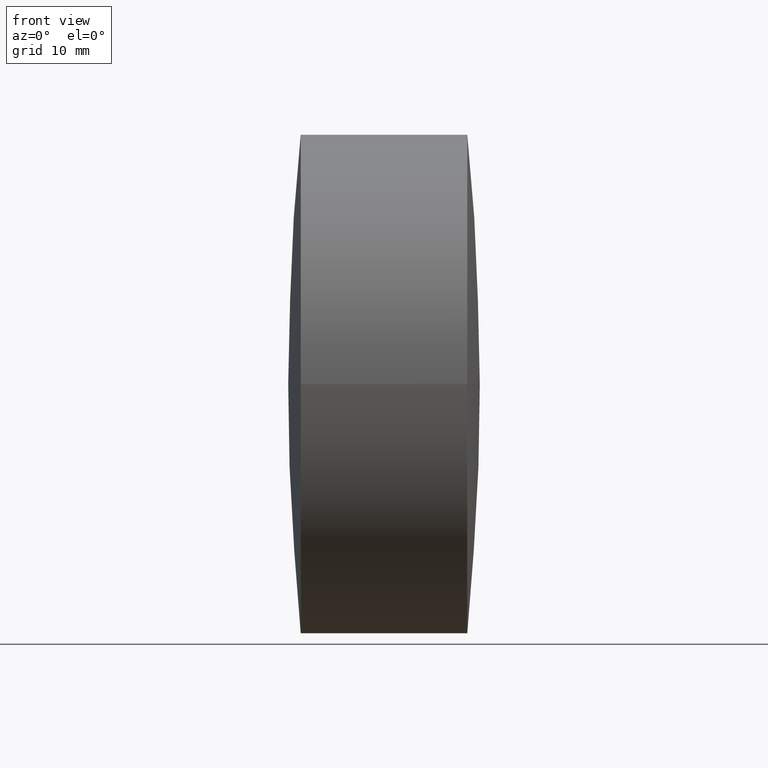
[diagram: clean part render]
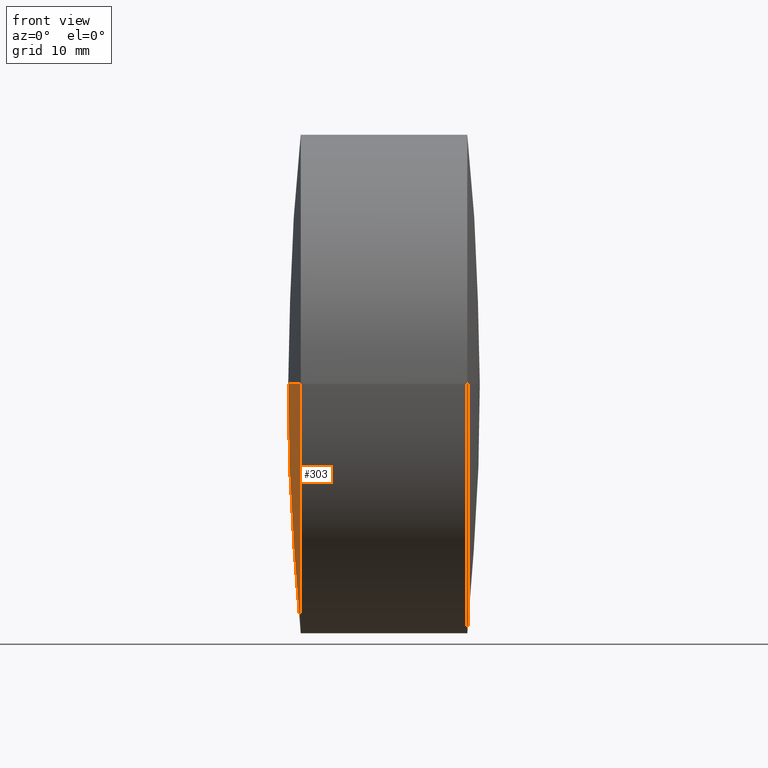
[diagram: same view with one face highlighted and labeled with its STEP entity id]
A machine part, front view. The second image highlights one B-rep face of the part: STEP entity #303.
In plain terms, the highlighted spherical surface has radius 350.755 mm.
Its self-contained STEP definition (entity closure, byte-faithful):
#2 = EDGE_CURVE ( 'NONE', #71, #199, #164, .T. ) ;
#7 = CARTESIAN_POINT ( 'NONE',  ( 226.6046127648167500, 98.98141384342911000, -4.286263797015637900E-015 ) ) ;
#29 = CIRCLE ( 'NONE', #299, 350.7553411287618100 ) ;
#43 = DIRECTION ( 'NONE',  ( 0.0000000000000000000, 0.0000000000000000000, 1.000000000000000000 ) ) ;
#44 = CARTESIAN_POINT ( 'NONE',  ( 226.6046127648173800, 133.9814138434227000, 0.0000000000000000000 ) ) ;
#50 = CARTESIAN_POINT ( 'NONE',  ( 575.6093538935799600, 133.9814138434221300, 0.0000000000000000000 ) ) ;
#55 = SPHERICAL_SURFACE ( 'NONE', #62, 350.7553411287618100 ) ;
#61 = VERTEX_POINT ( 'NONE', #66 ) ;
#62 = AXIS2_PLACEMENT_3D ( 'NONE', #50, #262, #179 ) ;
#66 = CARTESIAN_POINT ( 'NONE',  ( 224.8540127648180900, 133.9814138434283800, 0.0000000000000000000 ) ) ;
#70 = CIRCLE ( 'NONE', #288, 350.7553411287618100 ) ;
#71 = VERTEX_POINT ( 'NONE', #110 ) ;
#96 = DIRECTION ( 'NONE',  ( 0.0000000000000000000, 1.000000000000000000, 1.224646799147353200E-016 ) ) ;
#97 = DIRECTION ( 'NONE',  ( 2.170125038671178500E-030, 1.224646799147353200E-016, -1.000000000000000000 ) ) ;
#110 = CARTESIAN_POINT ( 'NONE',  ( 226.6046127648180300, 168.9814138434219000, 0.0000000000000000000 ) ) ;
#114 = ORIENTED_EDGE ( 'NONE', *, *, #2, .T. ) ;
#115 = DIRECTION ( 'NONE',  ( 1.000000000000000000, 0.0000000000000000000, 0.0000000000000000000 ) ) ;
#146 = EDGE_CURVE ( 'NONE', #71, #61, #29, .T. ) ;
#159 = CARTESIAN_POINT ( 'NONE',  ( 575.6093538935799600, 133.9814138434221300, 0.0000000000000000000 ) ) ;
#164 = CIRCLE ( 'NONE', #246, 34.99999999999989300 ) ;
#177 = DIRECTION ( 'NONE',  ( -1.000000000000000000, 1.772041571645068800E-014, -0.0000000000000000000 ) ) ;
#179 = DIRECTION ( 'NONE',  ( 1.772531508114236400E-014, 1.000000000000000000, 0.0000000000000000000 ) ) ;
#196 = ORIENTED_EDGE ( 'NONE', *, *, #243, .T. ) ;
#199 = VERTEX_POINT ( 'NONE', #7 ) ;
#218 = EDGE_LOOP ( 'NONE', ( #114, #196, #284 ) ) ;
#230 = CARTESIAN_POINT ( 'NONE',  ( 575.6093538935799600, 133.9814138434221300, 0.0000000000000000000 ) ) ;
#243 = EDGE_CURVE ( 'NONE', #199, #61, #70, .T. ) ;
#246 = AXIS2_PLACEMENT_3D ( 'NONE', #44, #177, #286 ) ;
#262 = DIRECTION ( 'NONE',  ( 0.0000000000000000000, 0.0000000000000000000, -1.000000000000000000 ) ) ;
#263 = FACE_OUTER_BOUND ( 'NONE', #218, .T. ) ;
#284 = ORIENTED_EDGE ( 'NONE', *, *, #146, .F. ) ;
#286 = DIRECTION ( 'NONE',  ( -1.744636181553822700E-014, -1.000000000000000000, 0.0000000000000000000 ) ) ;
#288 = AXIS2_PLACEMENT_3D ( 'NONE', #159, #97, #96 ) ;
#299 = AXIS2_PLACEMENT_3D ( 'NONE', #230, #43, #115 ) ;
#303 = ADVANCED_FACE ( 'NONE', ( #263 ), #55, .T. ) ;